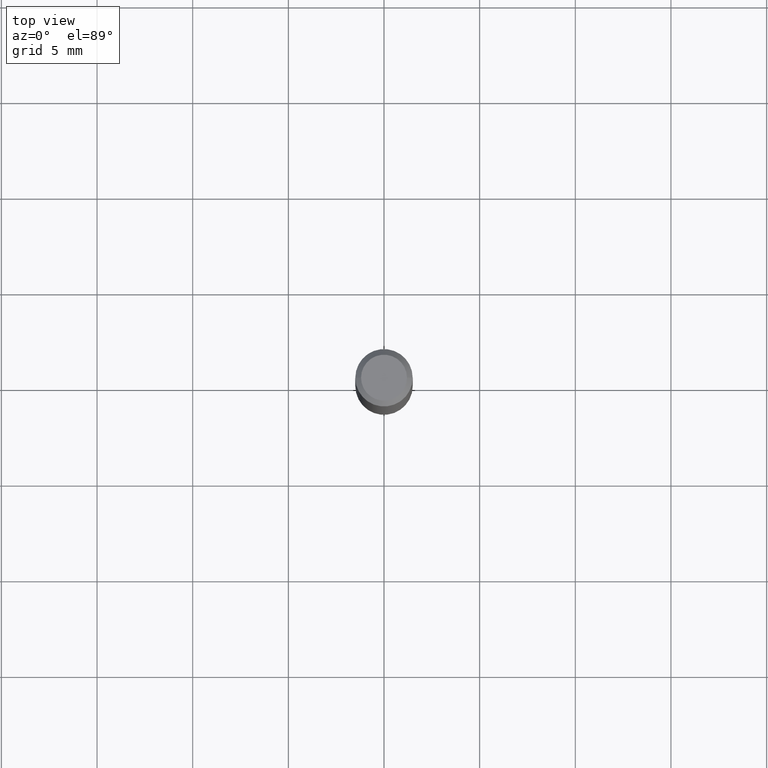
[diagram: clean part render]
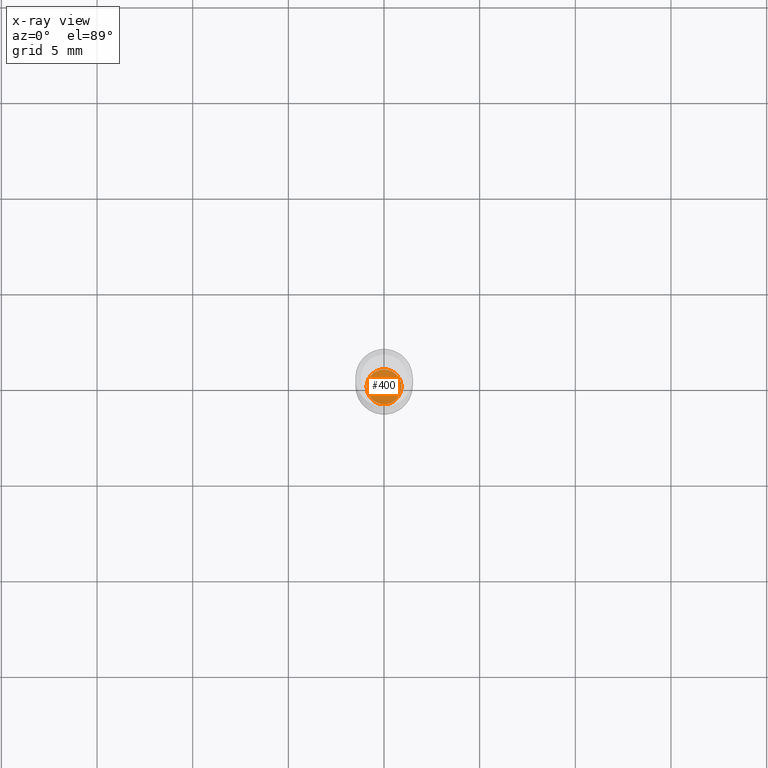
[diagram: x-ray — body ghosted, one internal face saturated and labeled with its STEP entity id]
A machine part, top view, then the same camera in x-ray: the body is ghosted and one INTERNAL B-rep face — a face not visible from any outside direction — is saturated and labeled: STEP entity #400.
In plain terms, the highlighted planar face has unit normal (-0, 0, 1).
Its self-contained STEP definition (entity closure, byte-faithful):
#31 = PLANE ( 'NONE',  #115 ) ;
#37 = VERTEX_POINT ( 'NONE', #233 ) ;
#61 = AXIS2_PLACEMENT_3D ( 'NONE', #488, #151, #301 ) ;
#83 = CARTESIAN_POINT ( 'NONE',  ( 0.03590000000000000135, -4.072114685492760152E-15, -1.094500000000000028 ) ) ;
#112 = VERTEX_POINT ( 'NONE', #83 ) ;
#115 = AXIS2_PLACEMENT_3D ( 'NONE', #193, #139, #362 ) ;
#137 = AXIS2_PLACEMENT_3D ( 'NONE', #288, #436, #243 ) ;
#139 = DIRECTION ( 'NONE',  ( -2.438088387897960049E-29, 3.491481338843145188E-15, 1.000000000000000000 ) ) ;
#151 = DIRECTION ( 'NONE',  ( -2.445468806185136597E-29, 3.491481338843145583E-15, 1.000000000000000000 ) ) ;
#193 = CARTESIAN_POINT ( 'NONE',  ( -2.313886645776993387E-30, -7.985782354703010177E-15, -1.094500000000000028 ) ) ;
#233 = CARTESIAN_POINT ( 'NONE',  ( -0.03590000000000000135, -3.563692256051836089E-15, -1.094500000000000028 ) ) ;
#243 = DIRECTION ( 'NONE',  ( 1.000000000000000000, -6.982962677686273810E-15, 0.000000000000000000 ) ) ;
#262 = CIRCLE ( 'NONE', #61, 0.03590000000000000135 ) ;
#263 = EDGE_LOOP ( 'NONE', ( #370, #365 ) ) ;
#281 = CIRCLE ( 'NONE', #137, 0.03590000000000000135 ) ;
#288 = CARTESIAN_POINT ( 'NONE',  ( 2.676565608369632355E-29, -3.821426325363822773E-15, -1.094500000000000028 ) ) ;
#301 = DIRECTION ( 'NONE',  ( 1.000000000000000000, -6.982962677686273810E-15, 0.000000000000000000 ) ) ;
#312 = EDGE_CURVE ( 'NONE', #112, #37, #281, .T. ) ;
#323 = FACE_OUTER_BOUND ( 'NONE', #263, .T. ) ;
#362 = DIRECTION ( 'NONE',  ( 1.000000000000000000, -6.982962677686265922E-15, 4.876176775795935793E-29 ) ) ;
#365 = ORIENTED_EDGE ( 'NONE', *, *, #445, .F. ) ;
#370 = ORIENTED_EDGE ( 'NONE', *, *, #312, .F. ) ;
#400 = ADVANCED_FACE ( 'NONE', ( #323 ), #31, .F. ) ;
#436 = DIRECTION ( 'NONE',  ( -2.445468806185136597E-29, 3.491481338843145583E-15, 1.000000000000000000 ) ) ;
#445 = EDGE_CURVE ( 'NONE', #37, #112, #262, .T. ) ;
#488 = CARTESIAN_POINT ( 'NONE',  ( 2.676565608369632355E-29, -3.821426325363822773E-15, -1.094500000000000028 ) ) ;